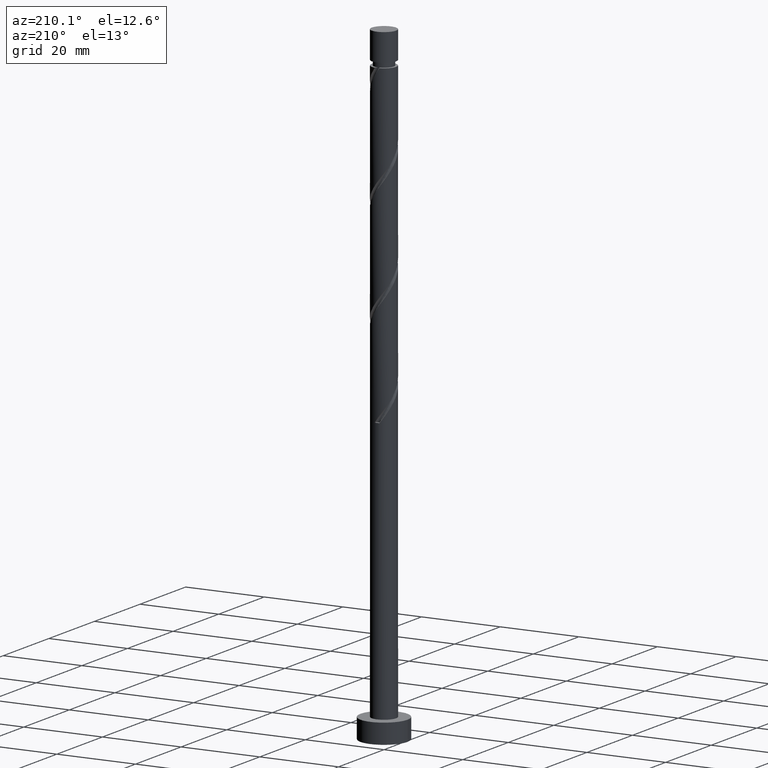
[diagram: clean part render]
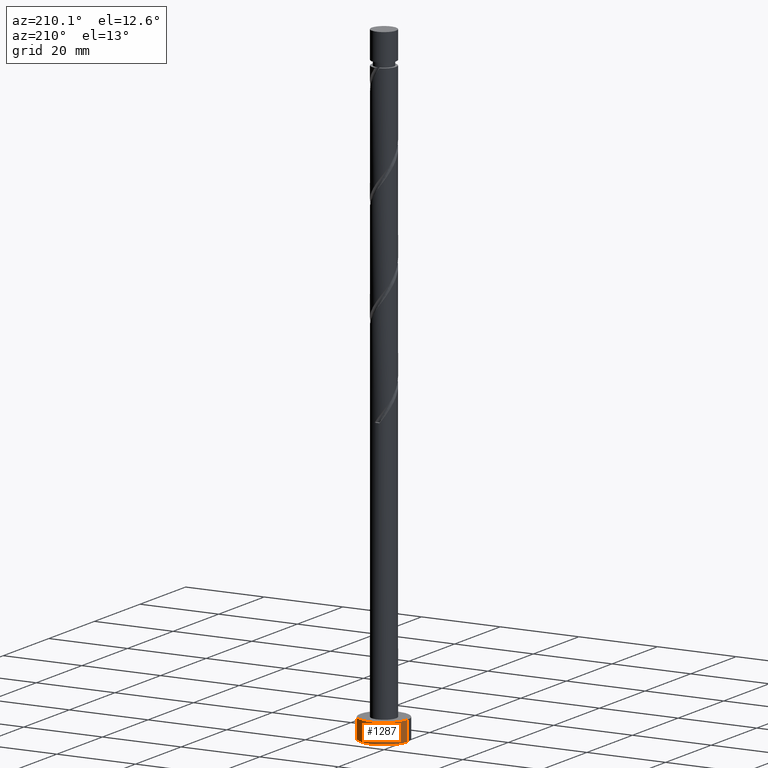
[diagram: same view with one face highlighted and labeled with its STEP entity id]
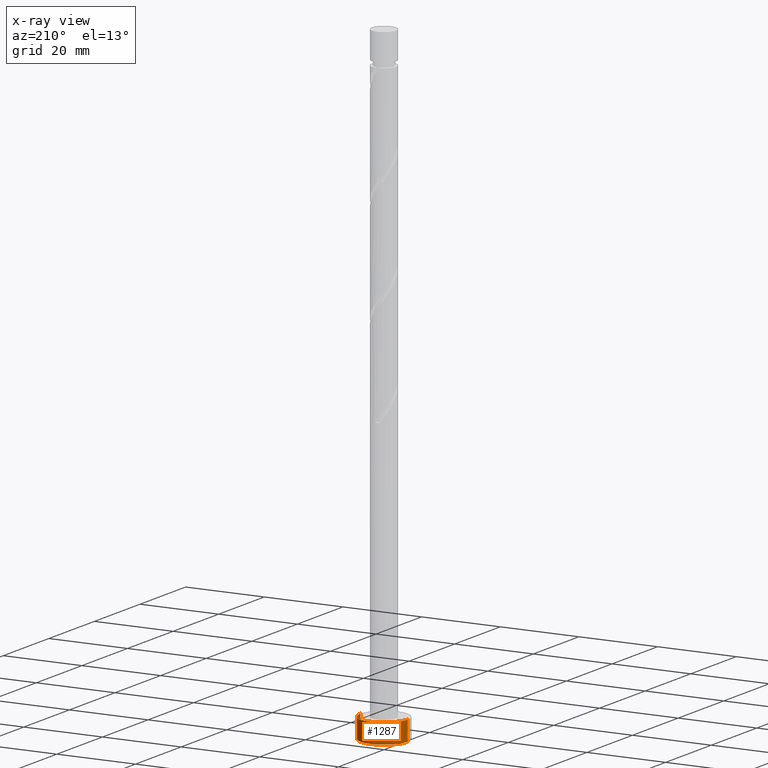
[diagram: x-ray of the same camera — body ghosted, the highlighted face saturated]
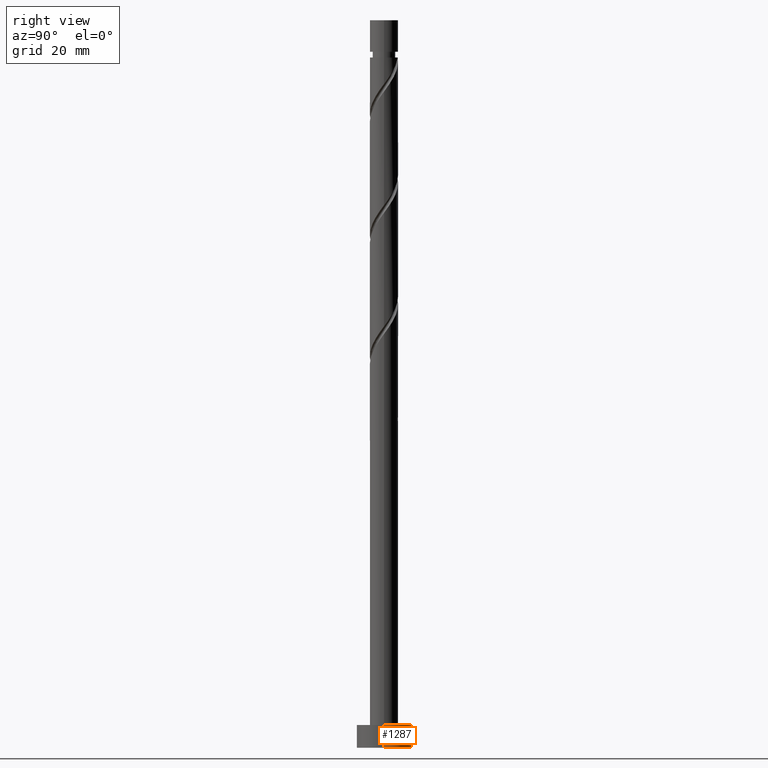
[diagram: same view with one face highlighted and labeled with its STEP entity id]
A machine part, auxiliary view. The second image highlights one B-rep face of the part: STEP entity #1287.
The next image is the same camera in x-ray: the body ghosted, the highlighted face saturated — about 0% of this face is hidden behind the body in this view.
A second angle (right view) of the same face is appended — the face is thin or edge-on in the first view.
In plain terms, the highlighted cylindrical surface (edge-blend (fillet) strip) has radius 6 mm, axis along (-0, -0, -1).
Its self-contained STEP definition (entity closure, byte-faithful):
#1 = EDGE_CURVE ( 'NONE', #81, #994, #818, .T. ) ;
#10 = DIRECTION ( 'NONE',  ( -1.000000000000000000, 0.000000000000000000, 0.000000000000000000 ) ) ;
#18 = VERTEX_POINT ( 'NONE', #42 ) ;
#42 = CARTESIAN_POINT ( 'NONE',  ( 6.000000000000000888, 7.347880794884120722E-16, 5.000000000000000000 ) ) ;
#81 = VERTEX_POINT ( 'NONE', #815 ) ;
#169 = VERTEX_POINT ( 'NONE', #685 ) ;
#174 = EDGE_CURVE ( 'NONE', #169, #994, #293, .T. ) ;
#249 = EDGE_CURVE ( 'NONE', #18, #169, #612, .T. ) ;
#293 = CIRCLE ( 'NONE', #781, 6.000000000000000888 ) ;
#312 = AXIS2_PLACEMENT_3D ( 'NONE', #1548, #629, #10 ) ;
#336 = DIRECTION ( 'NONE',  ( -0.000000000000000000, -0.000000000000000000, -1.000000000000000000 ) ) ;
#358 = ORIENTED_EDGE ( 'NONE', *, *, #249, .T. ) ;
#424 = CARTESIAN_POINT ( 'NONE',  ( 0.000000000000000000, 0.000000000000000000, 0.000000000000000000 ) ) ;
#462 = EDGE_CURVE ( 'NONE', #18, #81, #585, .T. ) ;
#585 = CIRCLE ( 'NONE', #886, 6.000000000000000888 ) ;
#612 = LINE ( 'NONE', #1645, #1220 ) ;
#629 = DIRECTION ( 'NONE',  ( -0.000000000000000000, -0.000000000000000000, -1.000000000000000000 ) ) ;
#634 = ORIENTED_EDGE ( 'NONE', *, *, #462, .F. ) ;
#668 = CARTESIAN_POINT ( 'NONE',  ( 0.000000000000000000, 0.000000000000000000, 5.000000000000000000 ) ) ;
#679 = EDGE_LOOP ( 'NONE', ( #634, #358, #799, #1180 ) ) ;
#685 = CARTESIAN_POINT ( 'NONE',  ( 6.000000000000000888, 7.347880794884120722E-16, 0.000000000000000000 ) ) ;
#767 = CYLINDRICAL_SURFACE ( 'NONE', #312, 6.000000000000000888 ) ;
#781 = AXIS2_PLACEMENT_3D ( 'NONE', #424, #936, #1456 ) ;
#799 = ORIENTED_EDGE ( 'NONE', *, *, #174, .T. ) ;
#815 = CARTESIAN_POINT ( 'NONE',  ( -6.000000000000000888, 0.000000000000000000, 5.000000000000000000 ) ) ;
#818 = LINE ( 'NONE', #953, #1157 ) ;
#886 = AXIS2_PLACEMENT_3D ( 'NONE', #668, #1297, #887 ) ;
#887 = DIRECTION ( 'NONE',  ( 1.000000000000000000, 0.000000000000000000, 0.000000000000000000 ) ) ;
#936 = DIRECTION ( 'NONE',  ( 0.000000000000000000, 0.000000000000000000, 1.000000000000000000 ) ) ;
#953 = CARTESIAN_POINT ( 'NONE',  ( -6.000000000000000888, 0.000000000000000000, 5.000000000000000000 ) ) ;
#994 = VERTEX_POINT ( 'NONE', #1193 ) ;
#1157 = VECTOR ( 'NONE', #1475, 1000.000000000000000 ) ;
#1180 = ORIENTED_EDGE ( 'NONE', *, *, #1, .F. ) ;
#1193 = CARTESIAN_POINT ( 'NONE',  ( -6.000000000000000888, 0.000000000000000000, 0.000000000000000000 ) ) ;
#1220 = VECTOR ( 'NONE', #336, 1000.000000000000000 ) ;
#1287 = ADVANCED_FACE ( 'NONE', ( #1406 ), #767, .T. ) ;
#1297 = DIRECTION ( 'NONE',  ( 0.000000000000000000, 0.000000000000000000, 1.000000000000000000 ) ) ;
#1406 = FACE_OUTER_BOUND ( 'NONE', #679, .T. ) ;
#1456 = DIRECTION ( 'NONE',  ( 1.000000000000000000, 0.000000000000000000, 0.000000000000000000 ) ) ;
#1475 = DIRECTION ( 'NONE',  ( -0.000000000000000000, -0.000000000000000000, -1.000000000000000000 ) ) ;
#1548 = CARTESIAN_POINT ( 'NONE',  ( 0.000000000000000000, 0.000000000000000000, 5.000000000000000000 ) ) ;
#1645 = CARTESIAN_POINT ( 'NONE',  ( 6.000000000000000888, 7.347880794884120722E-16, 5.000000000000000000 ) ) ;